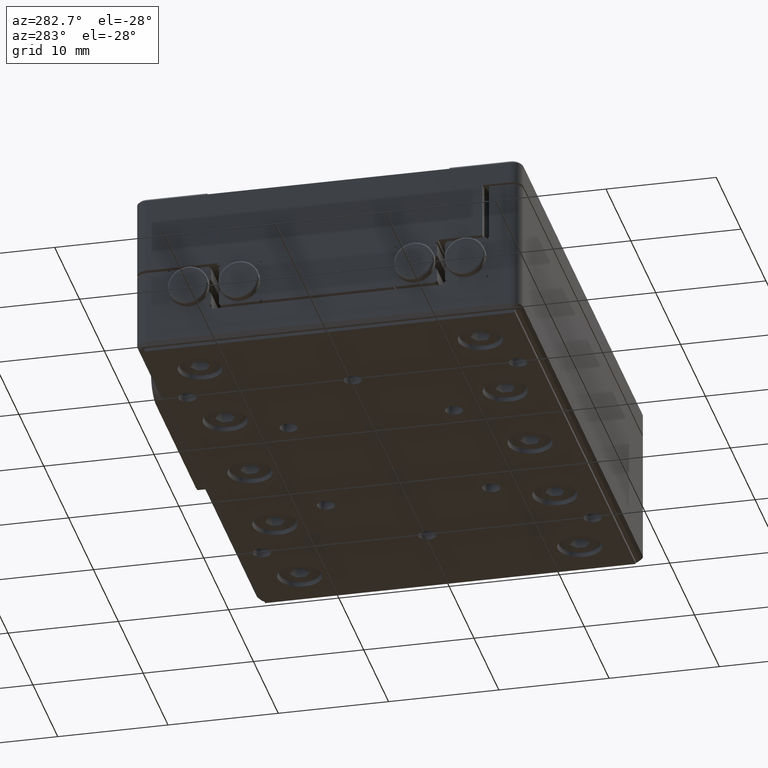
[diagram: clean part render]
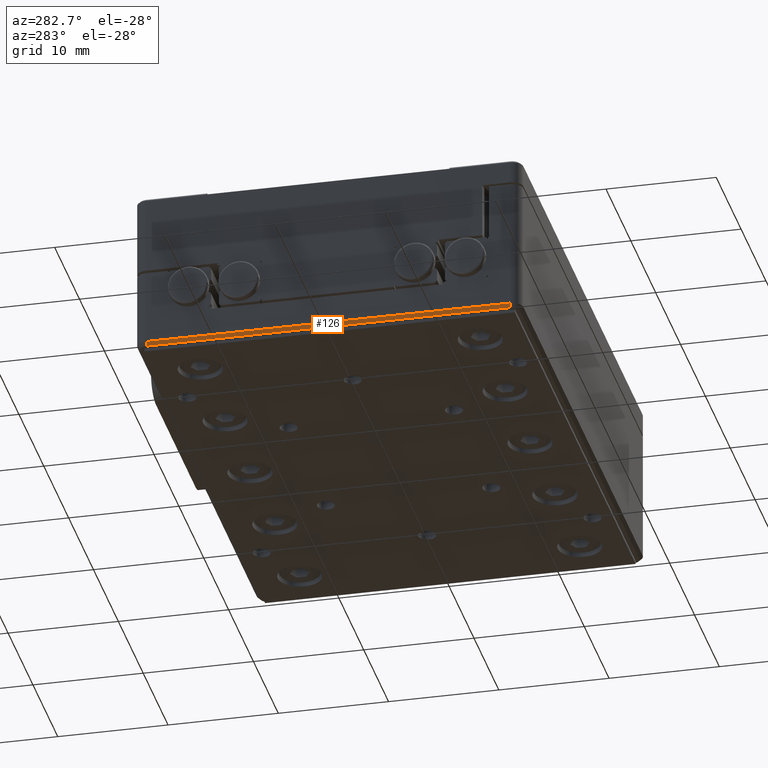
[diagram: same view with one face highlighted and labeled with its STEP entity id]
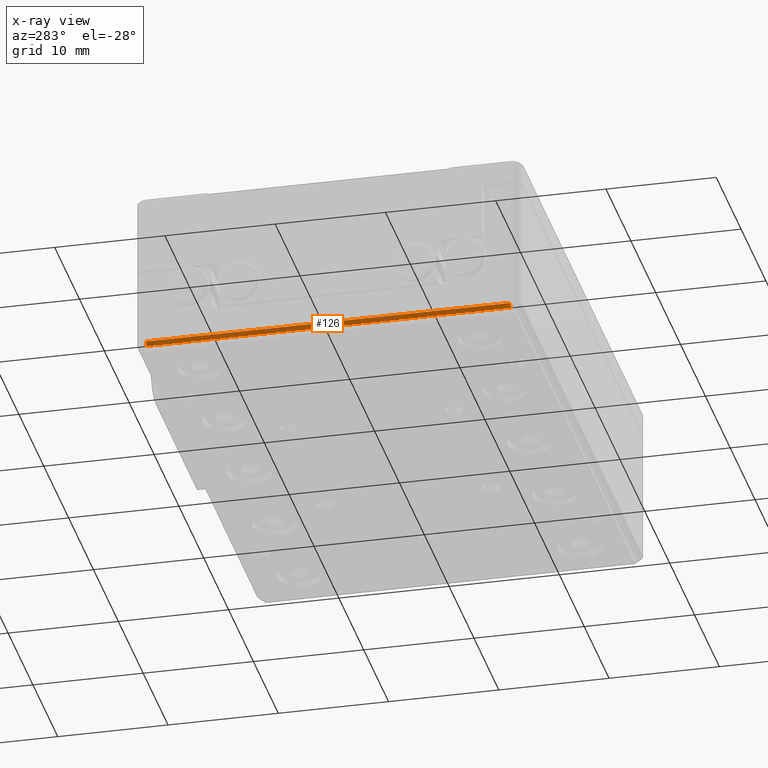
[diagram: x-ray of the same camera — body ghosted, the highlighted face saturated]
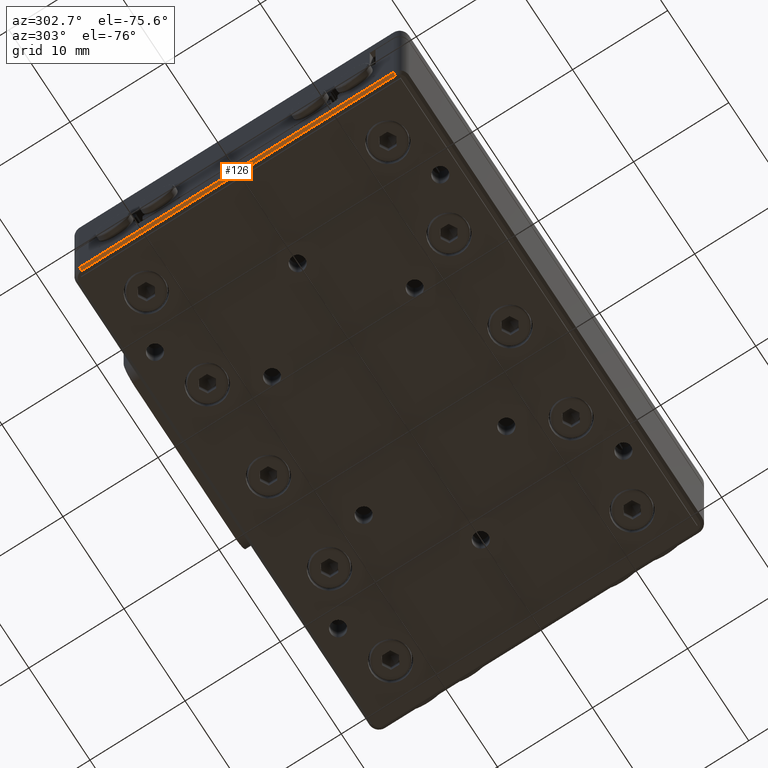
[diagram: same view with one face highlighted and labeled with its STEP entity id]
A machine part, auxiliary view. The second image highlights one B-rep face of the part: STEP entity #126.
The next image is the same camera in x-ray: the body ghosted, the highlighted face saturated — about 0% of this face is hidden behind the body in this view.
A second angle (auxiliary view) of the same face is appended — the face is thin or edge-on in the first view.
In plain terms, the highlighted planar face has unit normal (-0.7071, 0, -0.7071).
Its self-contained STEP definition (entity closure, byte-faithful):
#126 = ADVANCED_FACE ( 'NONE', ( #12005 ), #3607, .T. ) ;
#422 = VERTEX_POINT ( 'NONE', #13167 ) ;
#527 = CARTESIAN_POINT ( 'NONE',  ( -27.07789203084834995, 2.899999999999999911, -12.81748071979434123 ) ) ;
#627 = LINE ( 'NONE', #8212, #9093 ) ;
#1692 = EDGE_CURVE ( 'NONE', #8818, #8331, #8345, .T. ) ;
#1752 = CARTESIAN_POINT ( 'NONE',  ( -27.07789203084834995, 2.899999999999999911, 20.18251928020564989 ) ) ;
#2213 = CARTESIAN_POINT ( 'NONE',  ( -27.37789203084835421, 2.600000000000000089, -12.81748071979434123 ) ) ;
#3607 = PLANE ( 'NONE',  #10565 ) ;
#4030 = LINE ( 'NONE', #8263, #9610 ) ;
#4046 = VECTOR ( 'NONE', #10484, 1000.000000000000000 ) ;
#4164 = ORIENTED_EDGE ( 'NONE', *, *, #1692, .F. ) ;
#4596 = EDGE_LOOP ( 'NONE', ( #8809, #11193, #6325, #4164 ) ) ;
#5791 = VERTEX_POINT ( 'NONE', #2213 ) ;
#6275 = CARTESIAN_POINT ( 'NONE',  ( -27.07789203084834995, 2.899999999999999911, 20.18251928020564989 ) ) ;
#6325 = ORIENTED_EDGE ( 'NONE', *, *, #8381, .F. ) ;
#7839 = DIRECTION ( 'NONE',  ( -0.7071067811865540120, 0.7071067811865410224, 7.009341333409770038E-17 ) ) ;
#7910 = CARTESIAN_POINT ( 'NONE',  ( -27.07789203084834995, 2.899999999999999911, 2.684151713478734725E-15 ) ) ;
#8037 = LINE ( 'NONE', #527, #13008 ) ;
#8212 = CARTESIAN_POINT ( 'NONE',  ( -27.07789203084834995, 2.899999999999999911, 20.18251928020564989 ) ) ;
#8263 = CARTESIAN_POINT ( 'NONE',  ( -27.37789203084835421, 2.600000000000000089, -12.81748071979434123 ) ) ;
#8331 = VERTEX_POINT ( 'NONE', #1752 ) ;
#8345 = LINE ( 'NONE', #6275, #4046 ) ;
#8381 = EDGE_CURVE ( 'NONE', #8331, #422, #627, .T. ) ;
#8474 = DIRECTION ( 'NONE',  ( -9.912705577010319386E-17, 0.000000000000000000, -1.000000000000000000 ) ) ;
#8806 = DIRECTION ( 'NONE',  ( -0.7071067811865470176, -0.7071067811865480168, 0.000000000000000000 ) ) ;
#8809 = ORIENTED_EDGE ( 'NONE', *, *, #10683, .T. ) ;
#8818 = VERTEX_POINT ( 'NONE', #10345 ) ;
#9093 = VECTOR ( 'NONE', #12437, 999.9999999999998863 ) ;
#9610 = VECTOR ( 'NONE', #8474, 1000.000000000000000 ) ;
#10345 = CARTESIAN_POINT ( 'NONE',  ( -27.07789203084834995, 2.899999999999999911, -12.81748071979434123 ) ) ;
#10484 = DIRECTION ( 'NONE',  ( 9.912705577010319386E-17, 0.000000000000000000, 1.000000000000000000 ) ) ;
#10565 = AXIS2_PLACEMENT_3D ( 'NONE', #7910, #7839, #12081 ) ;
#10683 = EDGE_CURVE ( 'NONE', #8818, #5791, #8037, .T. ) ;
#11193 = ORIENTED_EDGE ( 'NONE', *, *, #13068, .F. ) ;
#12005 = FACE_OUTER_BOUND ( 'NONE', #4596, .T. ) ;
#12081 = DIRECTION ( 'NONE',  ( 9.912705577010319386E-17, 0.000000000000000000, 1.000000000000000000 ) ) ;
#12437 = DIRECTION ( 'NONE',  ( -0.7071067811865431318, -0.7071067811865520136, 0.000000000000000000 ) ) ;
#13008 = VECTOR ( 'NONE', #8806, 1000.000000000000000 ) ;
#13068 = EDGE_CURVE ( 'NONE', #422, #5791, #4030, .T. ) ;
#13167 = CARTESIAN_POINT ( 'NONE',  ( -27.37789203084835421, 2.600000000000000089, 20.18251928020564989 ) ) ;